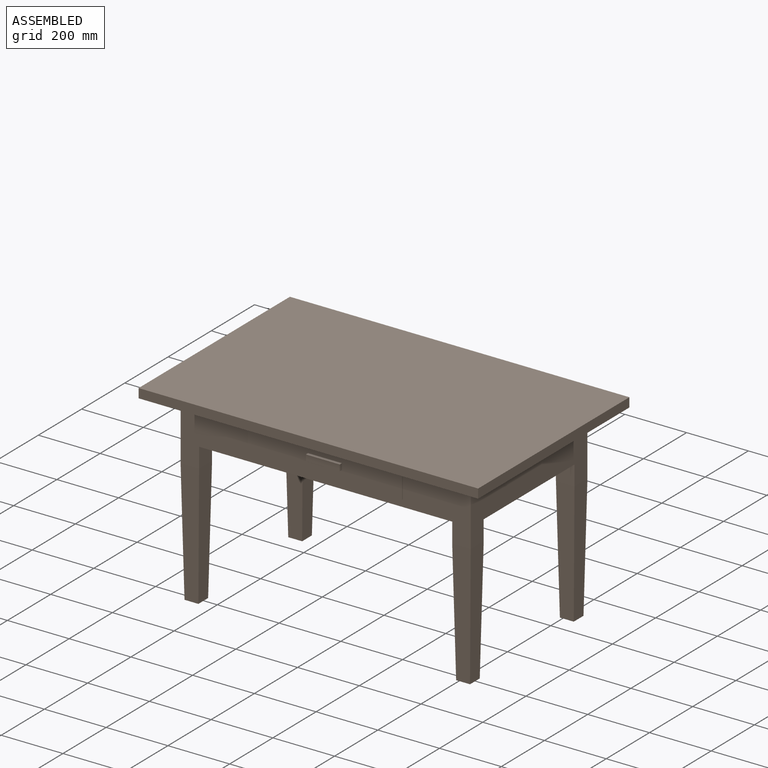
[diagram: assembled view]
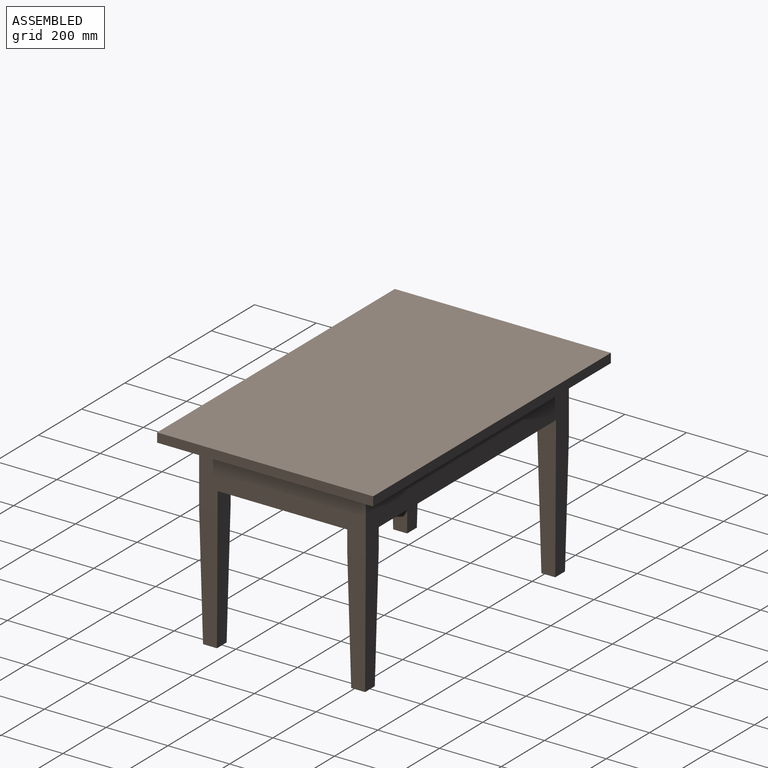
[diagram: assembled view, second angle]
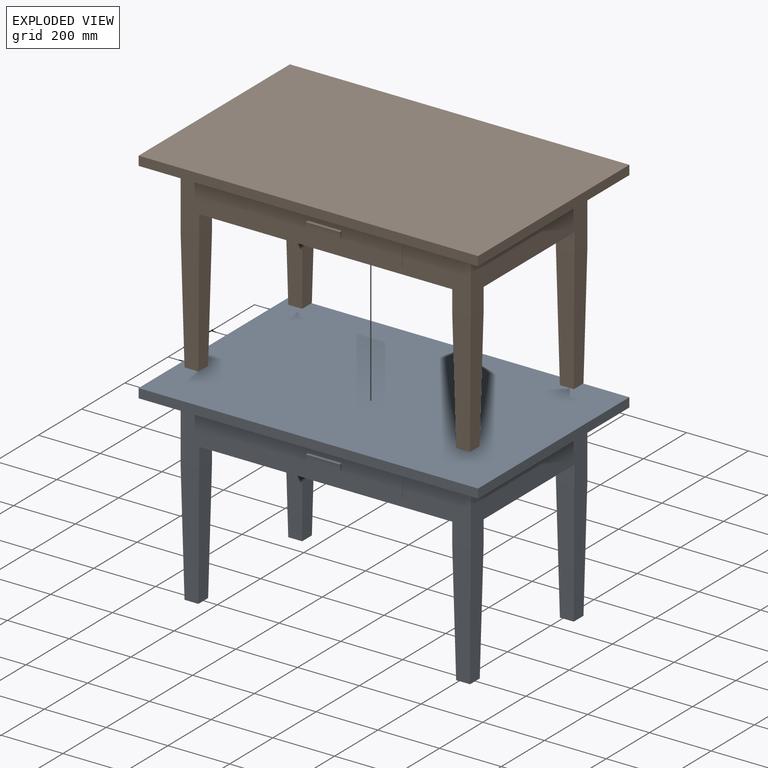
[diagram: exploded view]
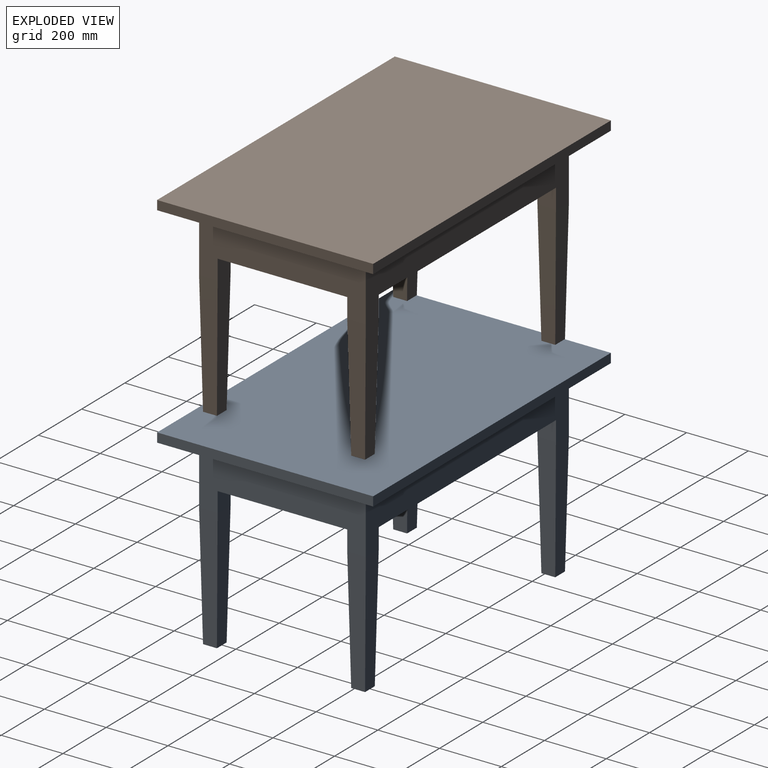
[diagram: exploded view, second angle]
FCSTD DOCUMENT  (FreeCAD 1.0R39109 (Git))
Label: table
License: All rights reserved
LicenseURL: https://en.wikipedia.org/wiki/All_rights_reserved
objects: Sketcher::SketchObject×7, PartDesign::Pad×7, PartDesign::Pocket×2, App::Part×2, PartDesign::Body×1, Assembly::JointGroup×1, Part::FeaturePython×1
note: 43 computed .brp shape members not serialized (recipe doc carries the construction recipe); baked Part::Feature solids carry a one-line shape summary decoded from their .brp

FEATURE [Sketcher::SketchObject] Sketch
  ArcFitTolerance = 1e-06
  AttachmentSupport = -> [XY_Plane]
  FullyConstrained = true
  MakeInternals = false
  MapMode = 5
  sketch-geometry (5):
    g0: LineSegment StartX=-550 StartY=-350 StartZ=0 EndX=550 EndY=-350 EndZ=0
    g1: LineSegment StartX=550 StartY=-350 StartZ=0 EndX=550 EndY=350 EndZ=0
    g2: LineSegment StartX=550 StartY=350 StartZ=0 EndX=-550 EndY=350 EndZ=0
    g3: LineSegment StartX=-550 StartY=350 StartZ=0 EndX=-550 EndY=-350 EndZ=0
    g4: GeomPoint [constr] X=0 Y=0 Z=0
  constraints (12):
    c: Coincident(g0,g1)
    c: Coincident(g1,g2)
    c: Coincident(g2,g3)
    c: Coincident(g3,g0)
    c: Horizontal(g0)
    c: Horizontal(g2)
    c: Vertical(g1)
    c: Vertical(g3)
    c: Symmetric(g2,g0,g4)
    c: Coincident(g4,g-1)
    c: DistanceX(g2,g2) = 1100
    c: DistanceY(g3,g3) = 700
FEATURE [PartDesign::Pad] Pad
  Direction = (0,0,1)
  Length = 30
  Length2 = 10
  Profile = -> Sketch
  ReferenceAxis = -> Sketch [N_Axis]
  Refine = true
  Suppressed = false
  Type = 0
FEATURE [Sketcher::SketchObject] Sketch001
  ArcFitTolerance = 1e-06
  AttachmentSupport = -> [Pad]
  ExternalGeometry = -> [Pad]
  FullyConstrained = true
  MakeInternals = false
  MapMode = 5
  Placement = pos=(0,0,0) rot=(1,0,0;3.14159rad)
  sketch-geometry (16):
    g0: LineSegment StartX=-470 StartY=270 StartZ=0 EndX=-470 EndY=210 EndZ=0
    g1: LineSegment StartX=-470 StartY=210 StartZ=0 EndX=-410 EndY=210 EndZ=0
    g2: LineSegment StartX=-410 StartY=210 StartZ=0 EndX=-410 EndY=270 EndZ=0
    g3: LineSegment StartX=-410 StartY=270 StartZ=0 EndX=-470 EndY=270 EndZ=0
    g4: LineSegment StartX=410 StartY=270 StartZ=0 EndX=410 EndY=210 EndZ=0
    g5: LineSegment StartX=410 StartY=210 StartZ=0 EndX=470 EndY=210 EndZ=0
    g6: LineSegment StartX=470 StartY=210 StartZ=0 EndX=470 EndY=270 EndZ=0
    g7: LineSegment StartX=470 StartY=270 StartZ=0 EndX=410 EndY=270 EndZ=0
    g8: LineSegment StartX=410 StartY=-210 StartZ=0 EndX=410 EndY=-270 EndZ=0
    g9: LineSegment StartX=410 StartY=-270 StartZ=0 EndX=470 EndY=-270 EndZ=0
    g10: LineSegment StartX=470 StartY=-270 StartZ=0 EndX=470 EndY=-210 EndZ=0
    g11: LineSegment StartX=470 StartY=-210 StartZ=0 EndX=410 EndY=-210 EndZ=0
    g12: LineSegment StartX=-470 StartY=-210 StartZ=0 EndX=-470 EndY=-270 EndZ=0
    g13: LineSegment StartX=-470 StartY=-270 StartZ=0 EndX=-410 EndY=-270 EndZ=0
    g14: LineSegment StartX=-410 StartY=-270 StartZ=0 EndX=-410 EndY=-210 EndZ=0
    g15: LineSegment StartX=-410 StartY=-210 StartZ=0 EndX=-470 EndY=-210 EndZ=0
  constraints (48):
    c: Coincident(g0,g1)
    c: Coincident(g1,g2)
    c: Coincident(g2,g3)
    c: Coincident(g3,g0)
    c: Vertical(g0)
    c: Vertical(g2)
    c: Horizontal(g1)
    c: Horizontal(g3)
    c: DistanceX(g1,g1) = 60
    c: DistanceY(g2,g2) = 60
    c: DistanceX(g-4,g0) = 80
    c: DistanceY(g0,g-4) = 80
    c: Coincident(g4,g5)
    c: Coincident(g5,g6)
    c: Coincident(g6,g7)
    c: Coincident(g7,g4)
    c: Vertical(g4)
    c: Vertical(g6)
    c: Horizontal(g5)
    c: Horizontal(g7)
    c: Coincident(g8,g9)
    c: Coincident(g9,g10)
    c: Coincident(g10,g11)
    c: Coincident(g11,g8)
    c: Vertical(g8)
    c: Vertical(g10)
    c: Horizontal(g9)
    c: Horizontal(g11)
    c: Coincident(g12,g13)
    c: Coincident(g13,g14)
    c: Coincident(g14,g15)
    c: Coincident(g15,g12)
    c: Vertical(g12)
    c: Vertical(g14)
    c: Horizontal(g13)
    c: Horizontal(g15)
    c: Equal(g1,g15)
    c: Equal(g15,g11)
    c: Equal(g11,g7)
    c: Equal(g2,g6)
    c: Equal(g6,g10)
    c: Equal(g10,g14)
    c: DistanceX(g-6,g12) = 80
    c: DistanceX(g9,g-6) = 80
    c: DistanceX(g6,g-5) = 80
    c: DistanceY(g6,g-5) = 80
    c: DistanceY(g-6,g9) = 80
    c: DistanceY(g-6,g12) = 80
FEATURE [PartDesign::Pad] Pad001
  BaseFeature = -> Pad
  Direction = (0,0,-1)
  Length = 600
  Length2 = 10
  Profile = -> Sketch001
  ReferenceAxis = -> Sketch001 [N_Axis]
  Refine = true
  Suppressed = false
  Type = 0
FEATURE [Sketcher::SketchObject] Sketch002
  ArcFitTolerance = 1e-06
  AttachmentSupport = -> [Pad001]
  ExternalGeometry = -> [Pad001]
  FullyConstrained = true
  MakeInternals = false
  MapMode = 5
  Placement = pos=(0,-270,0) rot=(1,0,0;1.5708rad)
  sketch-geometry (12):
    g0: LineSegment StartX=470 StartY=-600 StartZ=0 EndX=470 EndY=-200 EndZ=0
    g1: LineSegment StartX=410 StartY=-600 StartZ=0 EndX=410 EndY=-200 EndZ=0
    g2: LineSegment StartX=410 StartY=-600 StartZ=0 EndX=417.5 EndY=-600 EndZ=0
    g3: LineSegment StartX=410 StartY=-200 StartZ=0 EndX=417.5 EndY=-600 EndZ=0
    g4: LineSegment StartX=470 StartY=-200 StartZ=0 EndX=462.5 EndY=-600 EndZ=0
    g5: LineSegment StartX=462.5 StartY=-600 StartZ=0 EndX=470 EndY=-600 EndZ=0
    g6: LineSegment StartX=-410 StartY=-600 StartZ=0 EndX=-410 EndY=-200 EndZ=0
    g7: LineSegment StartX=-470 StartY=-600 StartZ=0 EndX=-470 EndY=-200 EndZ=0
    g8: LineSegment StartX=-470 StartY=-200 StartZ=0 EndX=-462.5 EndY=-600 EndZ=0
    g9: LineSegment StartX=-417.5 StartY=-600 StartZ=0 EndX=-410 EndY=-200 EndZ=0
    g10: LineSegment StartX=-417.5 StartY=-600 StartZ=0 EndX=-410 EndY=-600 EndZ=0
    g11: LineSegment StartX=-462.5 StartY=-600 StartZ=0 EndX=-470 EndY=-600 EndZ=0
  constraints (33):
    c: Coincident(g0,g-3)
    c: Vertical(g0)
    c: DistanceY(g0,g0) = 400
    c: Coincident(g1,g-3)
    c: Vertical(g1)
    c: Equal(g1,g0)
    c: Coincident(g2,g1)
    c: Coincident(g5,g0)
    c: Coincident(g3,g1)
    c: Coincident(g4,g0)
    c: PointOnObject(g4,g5)
    c: Coincident(g2,g3)
    c: PointOnObject(g5,g4)
    c: DistanceX(g1,g2) = 7.5
    c: Equal(g5,g2)
    c: Coincident(g6,g-4)
    c: Vertical(g6)
    c: Coincident(g7,g-4)
    c: Vertical(g7)
    c: Equal(g6,g7)
    c: Equal(g7,g1)
    c: Coincident(g8,g7)
    c: PointOnObject(g8,g-4)
    c: PointOnObject(g9,g-4)
    c: Coincident(g9,g6)
    c: Coincident(g10,g9)
    c: Coincident(g10,g6)
    c: Coincident(g11,g8)
    c: Coincident(g11,g7)
    c: Equal(g10,g11)
    c: Equal(g11,g2)
    c: PointOnObject(g4,g-3)
    c: PointOnObject(g2,g-3)
FEATURE [PartDesign::Pocket] Pocket
  BaseFeature = -> Pad001
  Direction = (0,1,-2e-16)
  Length = 5
  Length2 = 5
  Profile = -> Sketch002
  ReferenceAxis = -> Sketch002 [N_Axis]
  Refine = true
  Suppressed = false
  Type = 1
FEATURE [Sketcher::SketchObject] Sketch003
  ArcFitTolerance = 1e-06
  AttachmentSupport = -> [Pocket]
  ExternalGeometry = -> [Pocket]
  FullyConstrained = true
  MakeInternals = false
  MapMode = 5
  Placement = pos=(-550,0,0) rot=(0.57735,-0.57735,-0.57735;2.0944rad)
  sketch-geometry (12):
    g0: LineSegment StartX=-270 StartY=-200 StartZ=0 EndX=-270 EndY=-600 EndZ=0
    g1: LineSegment StartX=-210 StartY=-200 StartZ=0 EndX=-210 EndY=-600 EndZ=0
    g2: LineSegment StartX=210 StartY=-200 StartZ=0 EndX=210 EndY=-600 EndZ=0
    g3: LineSegment StartX=270 StartY=-200 StartZ=0 EndX=270 EndY=-600 EndZ=0
    g4: LineSegment StartX=-270 StartY=-600 StartZ=0 EndX=-262.5 EndY=-600 EndZ=0
    g5: LineSegment StartX=210 StartY=-600 StartZ=0 EndX=217.5 EndY=-600 EndZ=0
    g6: LineSegment StartX=-270 StartY=-200 StartZ=0 EndX=-262.5 EndY=-600 EndZ=0
    g7: LineSegment StartX=-217.5 StartY=-600 StartZ=0 EndX=-210 EndY=-200 EndZ=0
    g8: LineSegment StartX=210 StartY=-200 StartZ=0 EndX=217.5 EndY=-600 EndZ=0
    g9: LineSegment StartX=262.5 StartY=-600 StartZ=0 EndX=270 EndY=-200 EndZ=0
    g10: LineSegment StartX=262.5 StartY=-600 StartZ=0 EndX=270 EndY=-600 EndZ=0
    g11: LineSegment StartX=-217.5 StartY=-600 StartZ=0 EndX=-210 EndY=-600 EndZ=0
  constraints (30):
    c: Coincident(g0,g-6)
    c: Coincident(g0,g-6)
    c: Coincident(g1,g-5)
    c: Coincident(g1,g-5)
    c: Coincident(g2,g-4)
    c: Coincident(g2,g-4)
    c: Coincident(g3,g-3)
    c: Coincident(g3,g-3)
    c: Coincident(g4,g0)
    c: Coincident(g11,g1)
    c: Coincident(g5,g2)
    c: Coincident(g10,g3)
    c: Coincident(g6,g0)
    c: PointOnObject(g7,g11)
    c: Coincident(g7,g1)
    c: Coincident(g8,g2)
    c: PointOnObject(g9,g10)
    c: Coincident(g9,g3)
    c: Coincident(g5,g8)
    c: PointOnObject(g10,g9)
    c: DistanceX(g10,g10) = 7.5
    c: Coincident(g4,g6)
    c: PointOnObject(g11,g7)
    c: Equal(g4,g11)
    c: Equal(g11,g5)
    c: Equal(g5,g10)
    c: Horizontal(g10)
    c: Horizontal(g5)
    c: Horizontal(g4)
    c: Horizontal(g11)
FEATURE [PartDesign::Pocket] Pocket001
  BaseFeature = -> Pocket
  Direction = (1,0,0)
  Length = 5
  Length2 = 5
  Profile = -> Sketch003
  ReferenceAxis = -> Sketch003 [N_Axis]
  Suppressed = false
  Type = 1
FEATURE [Sketcher::SketchObject] Sketch004
  ArcFitTolerance = 1e-06
  AttachmentSupport = -> [Pocket001]
  ExternalGeometry = -> [Pocket001]
  FullyConstrained = true
  MakeInternals = false
  MapMode = 5
  Placement = pos=(0,-270,0) rot=(1,0,0;1.5708rad)
  sketch-geometry (4):
    g0: LineSegment StartX=-410 StartY=0 StartZ=0 EndX=-410 EndY=-135 EndZ=0
    g1: LineSegment StartX=-410 StartY=-135 StartZ=0 EndX=410 EndY=-135 EndZ=0
    g2: LineSegment StartX=410 StartY=-135 StartZ=0 EndX=410 EndY=0 EndZ=0
    g3: LineSegment StartX=410 StartY=0 StartZ=0 EndX=-410 EndY=0 EndZ=0
  constraints (11):
    c: Coincident(g0,g1)
    c: Coincident(g1,g2)
    c: Coincident(g2,g3)
    c: Coincident(g3,g0)
    c: Vertical(g0)
    c: Vertical(g2)
    c: Horizontal(g1)
    c: Horizontal(g3)
    c: Coincident(g0,g-3)
    c: PointOnObject(g1,g-4)
    c: DistanceY(g2,g2) = 135
FEATURE [PartDesign::Pad] Pad002
  BaseFeature = -> Pocket001
  Direction = (0,-1,2e-16)
  Length = 10
  Length2 = 10
  Profile = -> Sketch004
  ReferenceAxis = -> Sketch004 [N_Axis]
  Suppressed = false
  Type = 3
  UpToFace = -> Pocket001 [Face21]
FEATURE [PartDesign::Pad] Pad003
  BaseFeature = -> Pad002
  Direction = (1,0,0)
  Length = 10
  Length2 = 10
  Profile = -> Pad002 [Face11]
  Suppressed = false
  Type = 3
  UpToFace = -> Pad002 [Face9]
FEATURE [PartDesign::Pad] Pad004
  BaseFeature = -> Pad003
  Direction = (-1,0,0)
  Length = 10
  Length2 = 10
  Profile = -> Pad003 [Face16]
  Suppressed = false
  Type = 3
  UpToFace = -> Pad003 [Face14]
FEATURE [Sketcher::SketchObject] Sketch005
  ArcFitTolerance = 1e-06
  AttachmentSupport = -> [Pad004]
  ExternalGeometry = -> [Pad004]
  FullyConstrained = true
  MakeInternals = false
  MapMode = 5
  Placement = pos=(0,-270,1.134e-13) rot=(1,0,0;1.5708rad)
  sketch-geometry (8):
    g0: LineSegment StartX=-250 StartY=-22.5 StartZ=0 EndX=-250 EndY=-112.5 EndZ=0
    g1: LineSegment StartX=-250 StartY=-112.5 StartZ=0 EndX=250 EndY=-112.5 EndZ=0
    g2: LineSegment StartX=250 StartY=-112.5 StartZ=0 EndX=250 EndY=-22.5 EndZ=0
    g3: LineSegment StartX=250 StartY=-22.5 StartZ=0 EndX=-250 EndY=-22.5 EndZ=0
    g4: LineSegment [constr] StartX=-250 StartY=-22.5 StartZ=0 EndX=250 EndY=-112.5 EndZ=0
    g5: LineSegment [constr] StartX=250 StartY=-22.5 StartZ=0 EndX=-2.84e-14 EndY=-67.5 EndZ=0
    g6: LineSegment [constr] StartX=-410 StartY=-1.137e-13 StartZ=0 EndX=410 EndY=-135 EndZ=0
    g7: LineSegment [constr] StartX=410 StartY=0 StartZ=0 EndX=0 EndY=-67.5 EndZ=0
  constraints (18):
    c: Coincident(g0,g1)
    c: Coincident(g1,g2)
    c: Coincident(g2,g3)
    c: Coincident(g3,g0)
    c: Vertical(g0)
    c: Horizontal(g1)
    c: DistanceY(g0,g0) = 90
    c: DistanceX(g3,g3) = 500
    c: Symmetric(g2,g0,g-2)
    c: Coincident(g4,g0)
    c: Coincident(g4,g1)
    c: Coincident(g5,g2)
    c: Symmetric(g4,g4,g5)
    c: Coincident(g6,g-6)
    c: Coincident(g6,g-5)
    c: Coincident(g7,g-5)
    c: Symmetric(g6,g6,g7)
    c: Coincident(g5,g7)
FEATURE [PartDesign::Pad] Pad005
  BaseFeature = -> Pad004
  Direction = (0,-1,2e-16)
  Length = 3
  Length2 = 10
  Profile = -> Sketch005
  ReferenceAxis = -> Sketch005 [N_Axis]
  Refine = true
  Suppressed = false
  Type = 0
FEATURE [Sketcher::SketchObject] Sketch006
  ArcFitTolerance = 1e-06
  AttachmentSupport = -> [Pad005]
  ExternalGeometry = -> [Pad005]
  FullyConstrained = true
  MakeInternals = false
  MapMode = 5
  Placement = pos=(0,-273,0) rot=(1,0,0;1.5708rad)
  sketch-geometry (8):
    g0: LineSegment StartX=-55 StartY=-57.5 StartZ=0 EndX=-55 EndY=-77.5 EndZ=0
    g1: LineSegment StartX=-55 StartY=-77.5 StartZ=0 EndX=55 EndY=-77.5 EndZ=0
    g2: LineSegment StartX=55 StartY=-77.5 StartZ=0 EndX=55 EndY=-57.5 EndZ=0
    g3: LineSegment StartX=55 StartY=-57.5 StartZ=0 EndX=-55 EndY=-57.5 EndZ=0
    g4: LineSegment [constr] StartX=-55 StartY=-57.5 StartZ=0 EndX=55 EndY=-77.5 EndZ=0
    g5: LineSegment [constr] StartX=55 StartY=-57.5 StartZ=0 EndX=-2.84e-14 EndY=-67.5 EndZ=0
    g6: LineSegment [constr] StartX=-250 StartY=-22.5 StartZ=0 EndX=250 EndY=-112.5 EndZ=0
    g7: LineSegment [constr] StartX=250 StartY=-22.5 StartZ=0 EndX=-2.84e-14 EndY=-67.5 EndZ=0
  constraints (18):
    c: Coincident(g0,g1)
    c: Coincident(g1,g2)
    c: Coincident(g2,g3)
    c: Coincident(g3,g0)
    c: Vertical(g0)
    c: Horizontal(g1)
    c: DistanceX(g3,g3) = 110
    c: DistanceY(g2,g2) = 20
    c: Coincident(g4,g0)
    c: Coincident(g4,g1)
    c: Coincident(g5,g2)
    c: Symmetric(g2,g0,g-2)
    c: Symmetric(g0,g1,g5)
    c: Coincident(g6,g-4)
    c: Coincident(g6,g-3)
    c: Coincident(g7,g-3)
    c: Symmetric(g6,g6,g7)
    c: Coincident(g5,g7)
FEATURE [PartDesign::Pad] Pad006
  BaseFeature = -> Pad005
  Direction = (0,-1,2e-16)
  Length = 10
  Length2 = 10
  Profile = -> Sketch006
  ReferenceAxis = -> Sketch006 [N_Axis]
  Refine = true
  Suppressed = false
  Type = 0
FEATURE [PartDesign::Body] Body  label="table_b"
  AllowCompound = false
  Group = -> [Sketch,Pad,Sketch001,Pad001,Sketch002,Pocket,Sketch003,Pocket001,Sketch004,Pad002,Pad003,Pad004,Sketch005,Pad005,Sketch006,Pad006]
  Origin = -> Origin
  Placement = pos=(0,0,600) rot=(0,0,1;0rad)
  Tip = -> Pad006
FEATURE [Assembly::JointGroup] Joints
FEATURE [App::Part] Part  label="table_p"
  Group = -> [Body]
  Origin = -> Origin001
  Placement = pos=(0,0,600) rot=(0,0,1;0rad)
FEATURE [Part::FeaturePython] Clone  label="table_clone"  # Draft clone (typed FeaturePython)
  AttacherType = Attacher::AttachEngine3D
  Fuse = false
  Objects = -> [Part]
  Placement = pos=(0,0,600) rot=(0,0,1;0rad)
  Scale = (1,1,1)
FEATURE [App::Part] Part001  label="table"
  Group = -> [Clone]
  Origin = -> Origin002
